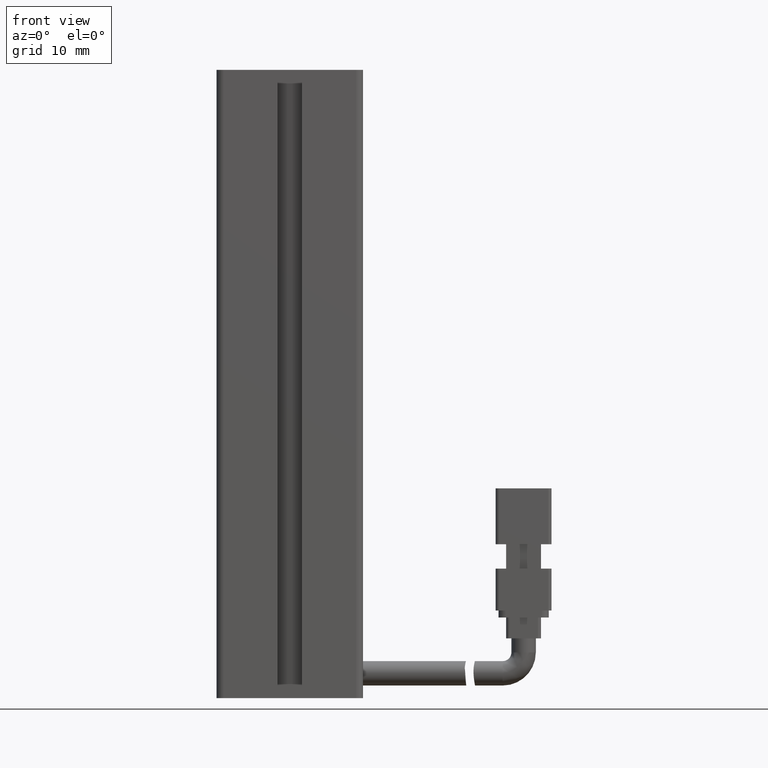
[diagram: clean part render]
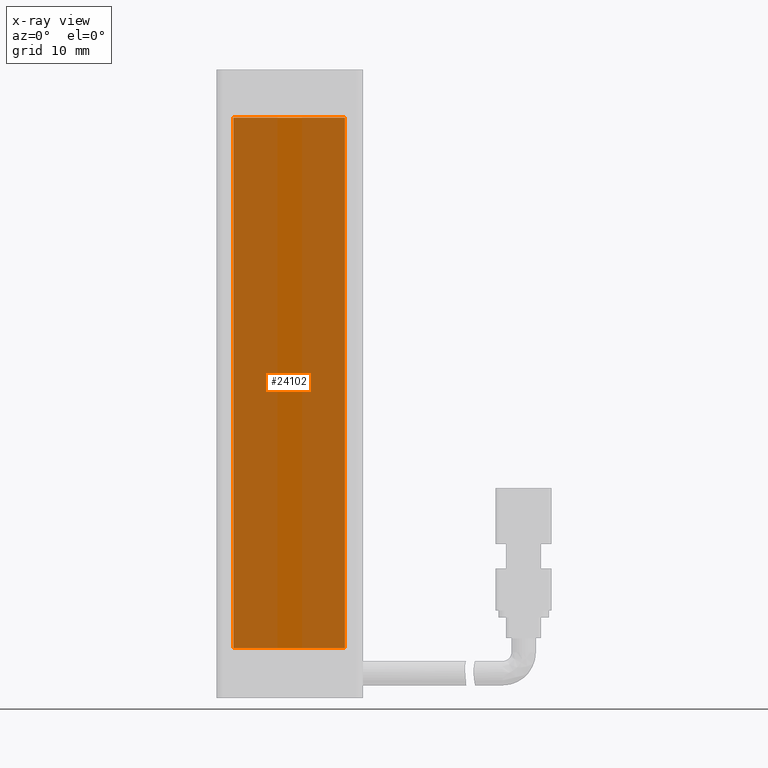
[diagram: x-ray — body ghosted, one internal face saturated and labeled with its STEP entity id]
A machine part, front view, then the same camera in x-ray: the body is ghosted and one INTERNAL B-rep face — a face not visible from any outside direction — is saturated and labeled: STEP entity #24102.
In plain terms, the highlighted planar face has unit normal (0, 1, 0).
Its self-contained STEP definition (entity closure, byte-faithful):
#686 = VECTOR ( 'NONE', #28356, 1000.000000000000000 ) ;
#1045 = CARTESIAN_POINT ( 'NONE',  ( 48.82537974683540900, 23.49073232304836600, -152.8499999999999900 ) ) ;
#2816 = EDGE_CURVE ( 'NONE', #29777, #29305, #28432, .T. ) ;
#4639 = LINE ( 'NONE', #31193, #686 ) ;
#5403 = FACE_OUTER_BOUND ( 'NONE', #9581, .T. ) ;
#5513 = VERTEX_POINT ( 'NONE', #19445 ) ;
#5579 = CARTESIAN_POINT ( 'NONE',  ( 48.82537974683540900, 23.49073232304836600, -114.8499999999999500 ) ) ;
#8058 = ORIENTED_EDGE ( 'NONE', *, *, #16677, .F. ) ;
#8544 = DIRECTION ( 'NONE',  ( 1.000000000000000000, -0.0000000000000000000, -0.0000000000000000000 ) ) ;
#9218 = EDGE_CURVE ( 'NONE', #22196, #5513, #4639, .T. ) ;
#9246 = DIRECTION ( 'NONE',  ( 0.0000000000000000000, -0.0000000000000000000, 1.000000000000000000 ) ) ;
#9360 = CARTESIAN_POINT ( 'NONE',  ( 32.82537974683540900, 23.49073232304836600, -76.84999999999998000 ) ) ;
#9581 = EDGE_LOOP ( 'NONE', ( #9721, #31578, #8058, #31936 ) ) ;
#9721 = ORIENTED_EDGE ( 'NONE', *, *, #12399, .F. ) ;
#12399 = EDGE_CURVE ( 'NONE', #5513, #29777, #29954, .T. ) ;
#15128 = DIRECTION ( 'NONE',  ( -0.0000000000000000000, 0.0000000000000000000, -1.000000000000000000 ) ) ;
#15307 = CARTESIAN_POINT ( 'NONE',  ( 48.82537974683540900, 23.49073232304836600, -76.84999999999998000 ) ) ;
#16230 = CARTESIAN_POINT ( 'NONE',  ( 40.82537974683540900, 23.49073232304836600, -76.84999999999998000 ) ) ;
#16677 = EDGE_CURVE ( 'NONE', #29305, #22196, #31372, .T. ) ;
#19445 = CARTESIAN_POINT ( 'NONE',  ( 32.82537974683540900, 23.49073232304836600, -152.8499999999999900 ) ) ;
#19918 = DIRECTION ( 'NONE',  ( 0.0000000000000000000, 1.000000000000000000, 0.0000000000000000000 ) ) ;
#22196 = VERTEX_POINT ( 'NONE', #1045 ) ;
#23511 = VECTOR ( 'NONE', #27932, 1000.000000000000000 ) ;
#24102 = ADVANCED_FACE ( 'NONE', ( #5403 ), #27524, .F. ) ;
#24185 = CARTESIAN_POINT ( 'NONE',  ( 32.82537974683540900, 23.49073232304836600, -114.8499999999999500 ) ) ;
#25215 = VECTOR ( 'NONE', #9246, 1000.000000000000000 ) ;
#27524 = PLANE ( 'NONE',  #27949 ) ;
#27932 = DIRECTION ( 'NONE',  ( -0.0000000000000000000, 0.0000000000000000000, -1.000000000000000000 ) ) ;
#27949 = AXIS2_PLACEMENT_3D ( 'NONE', #30054, #19918, #15128 ) ;
#28356 = DIRECTION ( 'NONE',  ( -1.000000000000000000, 0.0000000000000000000, 0.0000000000000000000 ) ) ;
#28432 = LINE ( 'NONE', #16230, #31556 ) ;
#29305 = VERTEX_POINT ( 'NONE', #15307 ) ;
#29777 = VERTEX_POINT ( 'NONE', #9360 ) ;
#29954 = LINE ( 'NONE', #24185, #25215 ) ;
#30054 = CARTESIAN_POINT ( 'NONE',  ( 40.82537974683540900, 23.49073232304836600, -114.8499999999999500 ) ) ;
#31193 = CARTESIAN_POINT ( 'NONE',  ( 40.82537974683540900, 23.49073232304836600, -152.8499999999999900 ) ) ;
#31372 = LINE ( 'NONE', #5579, #23511 ) ;
#31556 = VECTOR ( 'NONE', #8544, 1000.000000000000000 ) ;
#31578 = ORIENTED_EDGE ( 'NONE', *, *, #9218, .F. ) ;
#31936 = ORIENTED_EDGE ( 'NONE', *, *, #2816, .F. ) ;